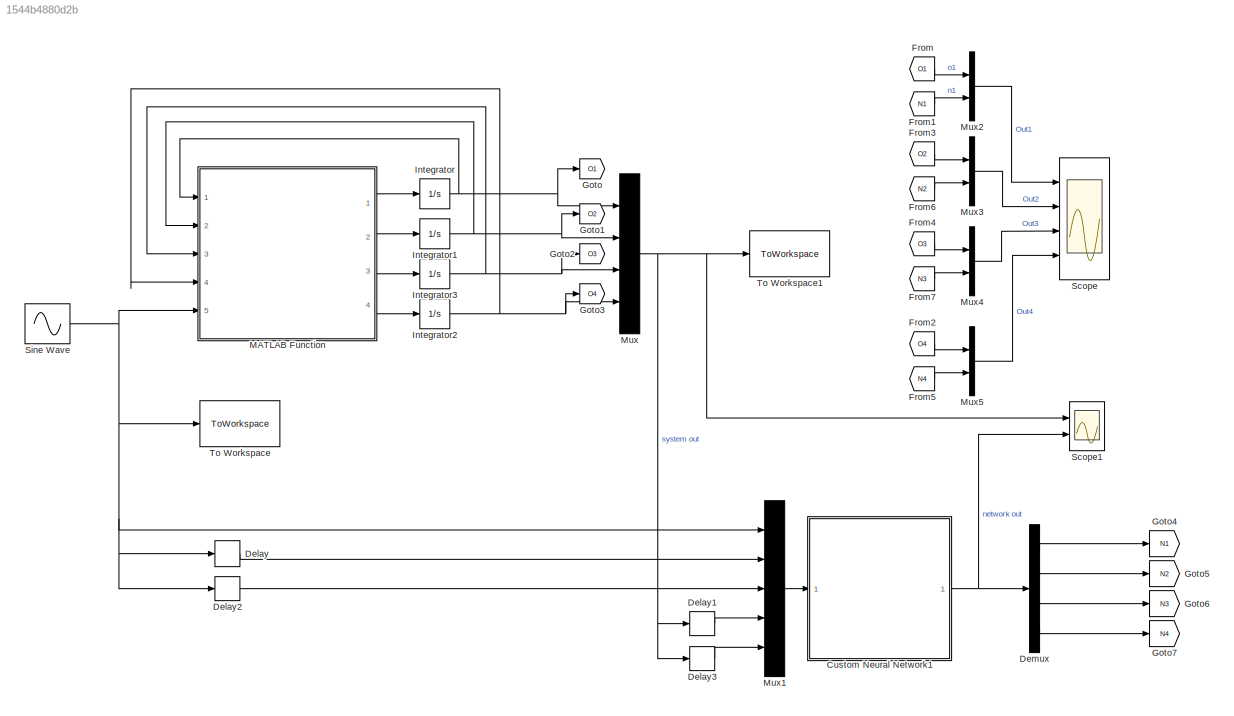
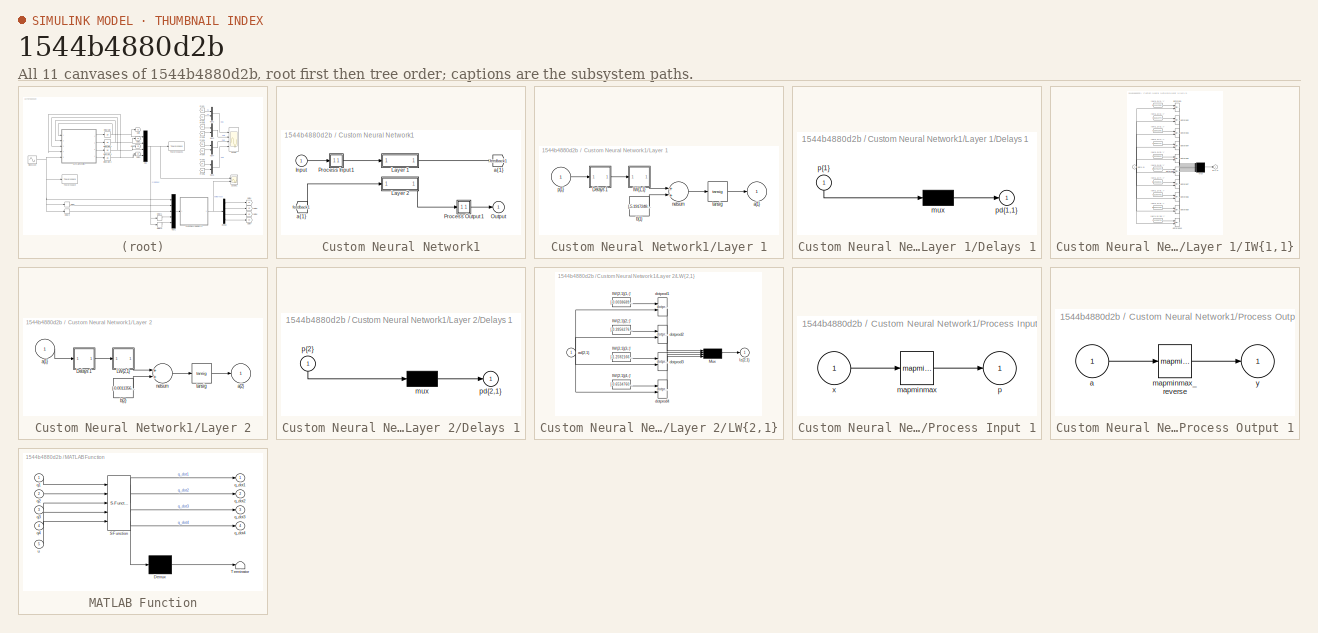
[diagram: thumbnail index - all 11 canvases of the model, root first then tree order]
MODEL slx_1544b4880d2b
KIND model
CONFIG AbsTol = auto
CONFIG EnableMultiTasking = off
CONFIG FixedStep = 0.1
CONFIG MaxStep = auto
CONFIG MinStep = auto
CONFIG RelTol = 1e-3
CONFIG SampleTimeConstraint = Unconstrained
CONFIG Solver = FixedStepAuto
CONFIG SolverName = FixedStepAuto
CONFIG StartTime = 0.0
CONFIG StopTime = 5.0
BLOCK [SubSystem] Custom Neural Network1
  Ports = [1, 1]
  RequestExecContextInheritance = off
BLOCK [From] Custom Neural Network1/ a{1} 
  GotoTag = feedback1
BLOCK [Inport] Custom Neural Network1/Input
  IconDisplay = Port number
  PortDimensions = 11
BLOCK [SubSystem] Custom Neural Network1/Layer 1
  Ports = [1, 1]
  RequestExecContextInheritance = off
BLOCK [SubSystem] Custom Neural Network1/Layer 1/Delays 1
  Ports = [1, 1]
  RequestExecContextInheritance = off
BLOCK [Mux] Custom Neural Network1/Layer 1/Delays 1/mux
  Inputs = 1
  Ports = [1, 1]
BLOCK [Outport] Custom Neural Network1/Layer 1/Delays 1/pd{1,1}
  IconDisplay = Port number
BLOCK [Inport] Custom Neural Network1/Layer 1/Delays 1/p{1}
  IconDisplay = Port number
  PortDimensions = 11
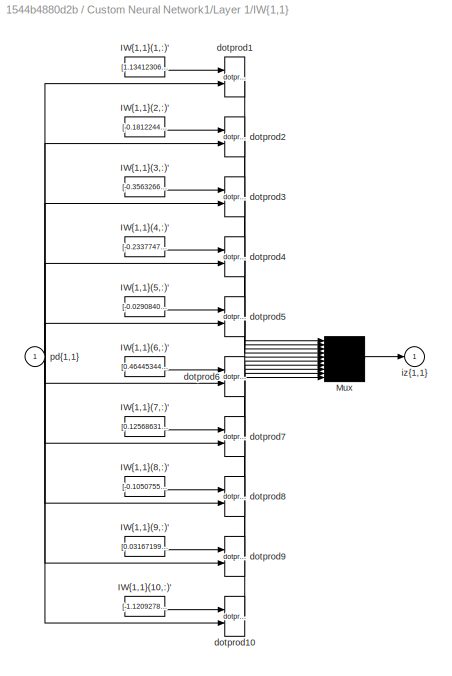
BLOCK [SubSystem] Custom Neural Network1/Layer 1/IW{1,1}
  Ports = [1, 1]
  RequestExecContextInheritance = off
BLOCK [Constant] Custom Neural Network1/Layer 1/IW{1,1}/IW{1,1}(1,:)'
  Value = [1.1341230663667916100934007772593759000301361083984375;-0.4636602460545178328032989156781695783138275146484375;0.87373120686943239743271760744391940534114837646484375;0.68277666131086489631485392237664200365543365478515625;0.019121015724631408583267244694070541299879550933837890625;-2.134972016034380803972680951119400560855865478515625;1.6521381207914858091356791192083619534969329833984375;1.1580...<+221ch>
BLOCK [Constant] Custom Neural Network1/Layer 1/IW{1,1}/IW{1,1}(10,:)'
  Value = [-1.1209278090473528965986815819633193314075469970703125;-0.477767900349778396051902973340475000441074371337890625;0.045308852915796497817790822182359988801181316375732421875;-2.65046604702121157970395870506763458251953125;1.25354209725742204994958228780888020992279052734375;0.4226437704529113492668557228171266615390777587890625;0.39415845993874765174069807471823878586292266845703125;-2.1010129913...<+209ch>
BLOCK [Constant] Custom Neural Network1/Layer 1/IW{1,1}/IW{1,1}(2,:)'
  Value = [-0.181224461545469173184841338297701440751552581787109375;0.23483273964877360295844255233532749116420745849609375;-0.2259573044765628424546122232641209848225116729736328125;0.411005989851798092526991013073711656033992767333984375;0.64953683949379559248171744911815039813518524169921875;0.26626314824245611578845682743121869862079620361328125;-1.661173341554654125928891517105512320995330810546875;0....<+212ch>
BLOCK [Constant] Custom Neural Network1/Layer 1/IW{1,1}/IW{1,1}(3,:)'
  Value = [-0.356326630044190795221226153444149531424045562744140625;0.388594131873345849381706784697598777711391448974609375;-0.36029377375213289536048932859557680785655975341796875;-0.0944981008612293116311064977708156220614910125732421875;0.2355398109038105147750030710085411556065082550048828125;4.93481372990318600812997829052619636058807373046875;0.503747267522813846341023236163891851902008056640625;0.8...<+221ch>
BLOCK [Constant] Custom Neural Network1/Layer 1/IW{1,1}/IW{1,1}(4,:)'
  Value = [-0.233774774969295606741326309929718263447284698486328125;0.262989794361324469296192773981601931154727935791015625;-0.2358727044319049725995540711664943955838680267333984375;-1.0327709250303842569707057919004000723361968994140625;0.07148809086886422081708047926440485753118991851806640625;1.1868209383537118295492973629734478890895843505859375;-0.6122683961945447617125637407298199832439422607421875...<+227ch>
BLOCK [Constant] Custom Neural Network1/Layer 1/IW{1,1}/IW{1,1}(5,:)'
  Value = [-0.0290840851750592301050435395382010028697550296783447265625;0.051373347296932582450867954548812122084200382232666015625;-0.05454552856771954782999500821460969746112823486328125;-0.68204049233297536769526914213201962411403656005859375;-0.93848381270338643300732428542687557637691497802734375;-0.83942686391769083531499973105383105576038360595703125;4.11263786029073941108435974456369876861572265625...<+219ch>
BLOCK [Constant] Custom Neural Network1/Layer 1/IW{1,1}/IW{1,1}(6,:)'
  Value = [0.464453448895205678326192355598323047161102294921875;-0.48482206332048460861727789961150847375392913818359375;0.45403053504024537545546991168521344661712646484375;1.044284480068653930828759257565252482891082763671875;0.02116520216901131290487825253876508213579654693603515625;1.2436729370503536440395464524044655263423919677734375;-1.5098194269585378801679098614840768277645111083984375;0.240500287...<+204ch>
BLOCK [Constant] Custom Neural Network1/Layer 1/IW{1,1}/IW{1,1}(7,:)'
  Value = [0.1256863140964872282978603834635578095912933349609375;-0.07537337781799025027140714882989414036273956298828125;0.1800603565846259079830105065411771647632122039794921875;1.3127750238628814738461869637831114232540130615234375;-0.068117454956574119417922474895021878182888031005859375;-0.6232028434455652021739524570875801146030426025390625;0.21942564782911866405612499875132925808429718017578125;0.31...<+213ch>
BLOCK [Constant] Custom Neural Network1/Layer 1/IW{1,1}/IW{1,1}(8,:)'
  Value = [-0.10507553528231076966914514514428447000682353973388671875;0.1128897236619923749589844419460860081017017364501953125;-0.1007338833525173449334744191219215281307697296142578125;-0.79522576537214095804273483736324124038219451904296875;-0.1466169343306387984338101659886888228356838226318359375;0.0252108052991420021615720514773784088902175426483154296875;-0.644226307120368102410168376081855967640876...<+234ch>
BLOCK [Constant] Custom Neural Network1/Layer 1/IW{1,1}/IW{1,1}(9,:)'
  Value = [0.031671994644033418797590684334863908588886260986328125;-0.034127901593477151520605872292435378767549991607666015625;0.0518896435243114406699049823146197013556957244873046875;0.8223512469958460524566135063651017844676971435546875;-0.1073579620228807540716076118769706226885318756103515625;0.10898136092458987622677568651852197945117950439453125;-4.15649576750388671797509232419542968273162841796875...<+217ch>
BLOCK [Mux] Custom Neural Network1/Layer 1/IW{1,1}/Mux
  Inputs = 10
  Ports = [10, 1]
BLOCK [Reference] Custom Neural Network1/Layer 1/IW{1,1}/dotprod1  REF=neural/Weight Functions/dotprod
  Ports = [2, 1]
  SourceBlock = neural/Weight Functions/dotprod
  SourceProductBaseCode = NN
  SourceProductName = Neural Network Toolbox
  SourceType = DOTPROD
BLOCK [Reference] Custom Neural Network1/Layer 1/IW{1,1}/dotprod10  REF=neural/Weight Functions/dotprod
  Ports = [2, 1]
  SourceBlock = neural/Weight Functions/dotprod
  SourceProductBaseCode = NN
  SourceProductName = Neural Network Toolbox
  SourceType = DOTPROD
BLOCK [Reference] Custom Neural Network1/Layer 1/IW{1,1}/dotprod2  REF=neural/Weight Functions/dotprod
  Ports = [2, 1]
  SourceBlock = neural/Weight Functions/dotprod
  SourceProductBaseCode = NN
  SourceProductName = Neural Network Toolbox
  SourceType = DOTPROD
BLOCK [Reference] Custom Neural Network1/Layer 1/IW{1,1}/dotprod3  REF=neural/Weight Functions/dotprod
  Ports = [2, 1]
  SourceBlock = neural/Weight Functions/dotprod
  SourceProductBaseCode = NN
  SourceProductName = Neural Network Toolbox
  SourceType = DOTPROD
BLOCK [Reference] Custom Neural Network1/Layer 1/IW{1,1}/dotprod4  REF=neural/Weight Functions/dotprod
  Ports = [2, 1]
  SourceBlock = neural/Weight Functions/dotprod
  SourceProductBaseCode = NN
  SourceProductName = Neural Network Toolbox
  SourceType = DOTPROD
BLOCK [Reference] Custom Neural Network1/Layer 1/IW{1,1}/dotprod5  REF=neural/Weight Functions/dotprod
  Ports = [2, 1]
  SourceBlock = neural/Weight Functions/dotprod
  SourceProductBaseCode = NN
  SourceProductName = Neural Network Toolbox
  SourceType = DOTPROD
BLOCK [Reference] Custom Neural Network1/Layer 1/IW{1,1}/dotprod6  REF=neural/Weight Functions/dotprod
  Ports = [2, 1]
  SourceBlock = neural/Weight Functions/dotprod
  SourceProductBaseCode = NN
  SourceProductName = Neural Network Toolbox
  SourceType = DOTPROD
BLOCK [Reference] Custom Neural Network1/Layer 1/IW{1,1}/dotprod7  REF=neural/Weight Functions/dotprod
  Ports = [2, 1]
  SourceBlock = neural/Weight Functions/dotprod
  SourceProductBaseCode = NN
  SourceProductName = Neural Network Toolbox
  SourceType = DOTPROD
BLOCK [Reference] Custom Neural Network1/Layer 1/IW{1,1}/dotprod8  REF=neural/Weight Functions/dotprod
  Ports = [2, 1]
  SourceBlock = neural/Weight Functions/dotprod
  SourceProductBaseCode = NN
  SourceProductName = Neural Network Toolbox
  SourceType = DOTPROD
BLOCK [Reference] Custom Neural Network1/Layer 1/IW{1,1}/dotprod9  REF=neural/Weight Functions/dotprod
  Ports = [2, 1]
  SourceBlock = neural/Weight Functions/dotprod
  SourceProductBaseCode = NN
  SourceProductName = Neural Network Toolbox
  SourceType = DOTPROD
BLOCK [Outport] Custom Neural Network1/Layer 1/IW{1,1}/iz{1,1}
  IconDisplay = Port number
BLOCK [Inport] Custom Neural Network1/Layer 1/IW{1,1}/pd{1,1}
  IconDisplay = Port number
  PortDimensions = 11
BLOCK [Outport] Custom Neural Network1/Layer 1/a{1}
  IconDisplay = Port number
  InitialOutput = [0;0;0;0;0;0;0;0;0;0]
BLOCK [Constant] Custom Neural Network1/Layer 1/b{1}
  Value = [-5.19172488336813575671158105251379311084747314453125;0.0639306799938050007714451794527121819555759429931640625;-0.0187617053274064561618761359795826137997210025787353515625;0.019740267384780400827803958918593707494437694549560546875;-0.06922950469684772956124874099259614013135433197021484375;0.039665370594634395684519034830373129807412624359130859375;-0.007827485535631848248550035407333780312910...<+198ch>
BLOCK [Sum] Custom Neural Network1/Layer 1/netsum
  Inputs = 2
  Ports = [2, 1]
BLOCK [Inport] Custom Neural Network1/Layer 1/p{1}
  IconDisplay = Port number
  PortDimensions = 11
BLOCK [Reference] Custom Neural Network1/Layer 1/tansig  REF=neural/Transfer Functions/tansig
  Ports = [1, 1]
  SourceBlock = neural/Transfer Functions/tansig
  SourceProductBaseCode = NN
  SourceProductName = Neural Network Toolbox
  SourceType = TANSIG
BLOCK [SubSystem] Custom Neural Network1/Layer 2
  Ports = [1, 1]
  RequestExecContextInheritance = off
BLOCK [SubSystem] Custom Neural Network1/Layer 2/Delays 1
  Ports = [1, 1]
  RequestExecContextInheritance = off
BLOCK [Mux] Custom Neural Network1/Layer 2/Delays 1/mux
  Inputs = 1
  Ports = [1, 1]
BLOCK [Outport] Custom Neural Network1/Layer 2/Delays 1/pd{2,1}
  IconDisplay = Port number
BLOCK [Inport] Custom Neural Network1/Layer 2/Delays 1/p{2}
  IconDisplay = Port number
  PortDimensions = 10
BLOCK [SubSystem] Custom Neural Network1/Layer 2/LW{2,1}
  Ports = [1, 1]
  RequestExecContextInheritance = off
BLOCK [Constant] Custom Neural Network1/Layer 2/LW{2,1}/IW{2,1}(1,:)'
  Value = [-0.003868954975504618025439196316028755973093211650848388671875;-0.02351996056367290643951406536871218122541904449462890625;1.48159387478872961452225354150868952274322509765625;-0.2037493861985155974014816138151218183338642120361328125;0.000215095017814275119884259712677021525450982153415679931640625;1.5498394934563257674398073504562489688396453857421875;0.0208713846672534848736280110870211501605...<+187ch>
BLOCK [Constant] Custom Neural Network1/Layer 2/LW{2,1}/IW{2,1}(2,:)'
  Value = [-0.395627604281082512205358625578810460865497589111328125;0.292423230894027719184435909482999704778194427490234375;0.08530991878733114319732777630633790977299213409423828125;-1.21190417332339261946572150918655097484588623046875;-0.793855829217624542337716775364242494106292724609375;0.163313163805293093400194948117132298648357391357421875;0.265242753798578811963437829035683535039424896240234375;0....<+167ch>
BLOCK [Constant] Custom Neural Network1/Layer 2/LW{2,1}/IW{2,1}(3,:)'
  Value = [-1.2592166693703372715162913664244115352630615234375;-0.04235834158539476812510571335224085487425327301025390625;0.4196878949637874445244278831523843109607696533203125;1.8726354953729804631024080663337372243404388427734375;-0.003395011736360176689275558459257808863185346126556396484375;-0.309598352862655412653936082278960384428501129150390625;0.0306972296074646232300064951914464472793042659759521...<+185ch>
BLOCK [Constant] Custom Neural Network1/Layer 2/LW{2,1}/IW{2,1}(4,:)'
  Value = [-0.65347600146053907987919728839187882840633392333984375;0.7110438638585134807357235331437550485134124755859375;-0.12306017303418097241785034157146583311259746551513671875;-0.50674022419993303145702157053165137767791748046875;1.8604916923243164372792080030194483697414398193359375;-0.1486497020107452604609221680220798589289188385009765625;1.134985517700155543963091986370272934436798095703125;0.689...<+166ch>
BLOCK [Mux] Custom Neural Network1/Layer 2/LW{2,1}/Mux
  Ports = [4, 1]
BLOCK [Inport] Custom Neural Network1/Layer 2/LW{2,1}/ad{2,1}
  IconDisplay = Port number
  PortDimensions = 10
BLOCK [Reference] Custom Neural Network1/Layer 2/LW{2,1}/dotprod1  REF=neural/Weight Functions/dotprod
  Ports = [2, 1]
  SourceBlock = neural/Weight Functions/dotprod
  SourceProductBaseCode = NN
  SourceProductName = Neural Network Toolbox
  SourceType = DOTPROD
BLOCK [Reference] Custom Neural Network1/Layer 2/LW{2,1}/dotprod2  REF=neural/Weight Functions/dotprod
  Ports = [2, 1]
  SourceBlock = neural/Weight Functions/dotprod
  SourceProductBaseCode = NN
  SourceProductName = Neural Network Toolbox
  SourceType = DOTPROD
BLOCK [Reference] Custom Neural Network1/Layer 2/LW{2,1}/dotprod3  REF=neural/Weight Functions/dotprod
  Ports = [2, 1]
  SourceBlock = neural/Weight Functions/dotprod
  SourceProductBaseCode = NN
  SourceProductName = Neural Network Toolbox
  SourceType = DOTPROD
BLOCK [Reference] Custom Neural Network1/Layer 2/LW{2,1}/dotprod4  REF=neural/Weight Functions/dotprod
  Ports = [2, 1]
  SourceBlock = neural/Weight Functions/dotprod
  SourceProductBaseCode = NN
  SourceProductName = Neural Network Toolbox
  SourceType = DOTPROD
BLOCK [Outport] Custom Neural Network1/Layer 2/LW{2,1}/lz{2,1}
  IconDisplay = Port number
BLOCK [Inport] Custom Neural Network1/Layer 2/a{1} 
  IconDisplay = Port number
  PortDimensions = 10
BLOCK [Outport] Custom Neural Network1/Layer 2/a{2}
  IconDisplay = Port number
  InitialOutput = [0;0;0;0]
BLOCK [Constant] Custom Neural Network1/Layer 2/b{2}
  Value = [-0.00113562566813537224770513933691518104751594364643096923828125;-0.442085319722853142820895300246775150299072265625;-1.2478831491509030371389599167741835117340087890625;-0.6058102724396186022914889690582640469074249267578125]
BLOCK [Sum] Custom Neural Network1/Layer 2/netsum
  Inputs = 2
  Ports = [2, 1]
BLOCK [Reference] Custom Neural Network1/Layer 2/tansig  REF=neural/Transfer Functions/tansig
  Ports = [1, 1]
  SourceBlock = neural/Transfer Functions/tansig
  SourceProductBaseCode = NN
  SourceProductName = Neural Network Toolbox
  SourceType = TANSIG
BLOCK [Outport] Custom Neural Network1/Output
  IconDisplay = Port number
  InitialOutput = [0;0;0;0]
BLOCK [SubSystem] Custom Neural Network1/Process Input 1
  Ports = [1, 1]
  RequestExecContextInheritance = off
BLOCK [Reference] Custom Neural Network1/Process Input 1/mapminmax  REF=neural/Processing Functions/mapminmax
  Ports = [1, 1]
  SourceBlock = neural/Processing Functions/mapminmax
  SourceProductBaseCode = NN
  SourceProductName = Neural Network Toolbox
  SourceType = MAPMINMAX Preprocess
BLOCK [Outport] Custom Neural Network1/Process Input 1/p
  IconDisplay = Port number
  PortDimensions = 11
BLOCK [Inport] Custom Neural Network1/Process Input 1/x
  IconDisplay = Port number
  PortDimensions = 11
BLOCK [SubSystem] Custom Neural Network1/Process Output 1
  Ports = [1, 1]
  RequestExecContextInheritance = off
BLOCK [Inport] Custom Neural Network1/Process Output 1/a
  IconDisplay = Port number
  PortDimensions = 4
BLOCK [Reference] Custom Neural Network1/Process Output 1/mapminmax_reverse  REF=neural/Processing Functions/mapminmax_reverse
  Ports = [1, 1]
  SourceBlock = neural/Processing Functions/mapminmax_reverse
  SourceProductBaseCode = NN
  SourceProductName = Neural Network Toolbox
  SourceType = MAPMINMAX Reverse Process
BLOCK [Outport] Custom Neural Network1/Process Output 1/y
  IconDisplay = Port number
  PortDimensions = 4
BLOCK [Goto] Custom Neural Network1/a{1}
  GotoTag = feedback1
BLOCK [Delay] Delay
  DelayLength = 1
  InputPortMap = u0
  Ports = [1, 1]
BLOCK [Delay] Delay1
  DelayLength = 1
  InputPortMap = u0
  Ports = [1, 1]
BLOCK [Delay] Delay2
  InputPortMap = u0
  Ports = [1, 1]
BLOCK [Delay] Delay3
  InputPortMap = u0
  Ports = [1, 1]
BLOCK [Demux] Demux
  DisplayOption = bar
  Ports = [1, 4]
BLOCK [From] From
  GotoTag = O1
BLOCK [From] From1
  GotoTag = N1
BLOCK [From] From2
  GotoTag = O4
BLOCK [From] From3
  GotoTag = O2
BLOCK [From] From4
  GotoTag = O3
BLOCK [From] From5
  GotoTag = N4
BLOCK [From] From6
  GotoTag = N2
BLOCK [From] From7
  GotoTag = N3
BLOCK [Goto] Goto
  GotoTag = O1
BLOCK [Goto] Goto1
  GotoTag = O2
BLOCK [Goto] Goto2
  GotoTag = O3
BLOCK [Goto] Goto3
  GotoTag = O4
BLOCK [Goto] Goto4
  GotoTag = N1
BLOCK [Goto] Goto5
  GotoTag = N2
BLOCK [Goto] Goto6
  GotoTag = N3
BLOCK [Goto] Goto7
  GotoTag = N4
BLOCK [Integrator] Integrator
  Ports = [1, 1]
BLOCK [Integrator] Integrator1
  Ports = [1, 1]
BLOCK [Integrator] Integrator2
  Ports = [1, 1]
BLOCK [Integrator] Integrator3
  Ports = [1, 1]
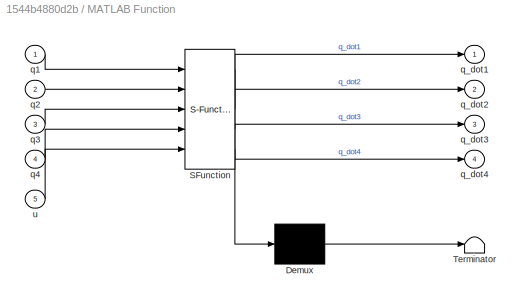
BLOCK [SubSystem] MATLAB Function
  ErrorFcn = Stateflow.Translate.translate
  PermitHierarchicalResolution = ExplicitOnly
  Ports = [5, 4]
  RequestExecContextInheritance = off
  SFBlockType = MATLAB Function
  TreatAsAtomicUnit = on
BLOCK [Demux] MATLAB Function/ Demux 
  Outputs = 1
  Ports = [1, 1]
BLOCK [S-Function] MATLAB Function/ SFunction 
  EnableBusSupport = on
  FunctionName = sf_sfun
  PortCounts = [5 5]
  Ports = [5, 5]
  SFcnIsStateOwnerBlock = off
  SFunctionDeploymentMode = off
  Tag = Stateflow S-Function Exp7_Q1 2
BLOCK [Terminator] MATLAB Function/ Terminator 
BLOCK [Inport] MATLAB Function/q1
  IconDisplay = Port number
BLOCK [Inport] MATLAB Function/q2
  IconDisplay = Port number
  Port = 2
BLOCK [Inport] MATLAB Function/q3
  IconDisplay = Port number
  Port = 3
BLOCK [Inport] MATLAB Function/q4
  IconDisplay = Port number
  Port = 4
BLOCK [Outport] MATLAB Function/q_dot1
  IconDisplay = Port number
BLOCK [Outport] MATLAB Function/q_dot2
  IconDisplay = Port number
  Port = 2
BLOCK [Outport] MATLAB Function/q_dot3
  IconDisplay = Port number
  Port = 3
BLOCK [Outport] MATLAB Function/q_dot4
  IconDisplay = Port number
  Port = 4
BLOCK [Inport] MATLAB Function/u
  IconDisplay = Port number
  Port = 5
BLOCK [Mux] Mux
  DisplayOption = bar
  Ports = [4, 1]
BLOCK [Mux] Mux1
  DisplayOption = bar
  Inputs = 5
  Ports = [5, 1]
BLOCK [Mux] Mux2
  DisplayOption = bar
  Inputs = 2
  Ports = [2, 1]
BLOCK [Mux] Mux3
  DisplayOption = bar
  Inputs = 2
  Ports = [2, 1]
BLOCK [Mux] Mux4
  DisplayOption = bar
  Inputs = 2
  Ports = [2, 1]
BLOCK [Mux] Mux5
  DisplayOption = bar
  Inputs = 2
  Ports = [2, 1]
BLOCK [Scope] Scope
  Floating = off
  NumInputPorts = 4
  Ports = [4]
  ScopeSpecificationString = Simulink.scopes.TimeScopeBlockCfg('CurrentConfiguration', extmgr.ConfigurationSet(extmgr.Configuration('Core','General UI',true,'FigureColor',[1 1 1]),extmgr.Configuration('Core','Source UI',true),extmgr.Configuration('Sources','WiredSimulink',true),extmgr.Configuration('Visuals','Time Domain',true,'SerializedDisplays',{struct('MinYLimReal','-3.51335','MaxYLimReal','0.39037','YLabelReal','','MinYL...<+4239ch>
BLOCK [Scope] Scope1
  Floating = off
  NumInputPorts = 2
  Ports = [2]
  ScopeSpecificationString = Simulink.scopes.TimeScopeBlockCfg('CurrentConfiguration', extmgr.ConfigurationSet(extmgr.Configuration('Core','General UI',true,'FigureColor',[1 1 1]),extmgr.Configuration('Core','Source UI',true),extmgr.Configuration('Sources','WiredSimulink',true,'DataLoggingVariableName','ScopeData1'),extmgr.Configuration('Visuals','Time Domain',true,'SerializedDisplays',{struct('MinYLimReal','-3.864','MaxYLimR...<+3253ch>
BLOCK [Sin] Sine Wave
  Frequency = 10
  Ports = [0, 1]
  SampleTime = 0
BLOCK [ToWorkspace] To Workspace
  FixptAsFi = on
  MaxDataPoints = inf
  Ports = [1]
  SampleTime = -1
  Save2DSignal = 3-D array (concatenate along third dimension)
  SaveFormat = Timeseries
  VariableName = input
BLOCK [ToWorkspace] To Workspace1
  FixptAsFi = on
  MaxDataPoints = inf
  Ports = [1]
  SampleTime = -1
  Save2DSignal = 3-D array (concatenate along third dimension)
  SaveFormat = Timeseries
  VariableName = output
LINE Custom Neural Network1/ a{1} :1 -> Custom Neural Network1/Layer 2:1
LINE Custom Neural Network1/Input:1 -> Custom Neural Network1/Process Input 1:1
LINE Custom Neural Network1/Layer 1/Delays 1/mux:1 -> Custom Neural Network1/Layer 1/Delays 1/pd{1,1}:1
LINE Custom Neural Network1/Layer 1/Delays 1/p{1}:1 -> Custom Neural Network1/Layer 1/Delays 1/mux:1
LINE Custom Neural Network1/Layer 1/Delays 1:1 -> Custom Neural Network1/Layer 1/IW{1,1}:1
LINE Custom Neural Network1/Layer 1/IW{1,1}/IW{1,1}(1,:)':1 -> Custom Neural Network1/Layer 1/IW{1,1}/dotprod1:1
LINE Custom Neural Network1/Layer 1/IW{1,1}/IW{1,1}(10,:)':1 -> Custom Neural Network1/Layer 1/IW{1,1}/dotprod10:1
LINE Custom Neural Network1/Layer 1/IW{1,1}/IW{1,1}(2,:)':1 -> Custom Neural Network1/Layer 1/IW{1,1}/dotprod2:1
LINE Custom Neural Network1/Layer 1/IW{1,1}/IW{1,1}(3,:)':1 -> Custom Neural Network1/Layer 1/IW{1,1}/dotprod3:1
LINE Custom Neural Network1/Layer 1/IW{1,1}/IW{1,1}(4,:)':1 -> Custom Neural Network1/Layer 1/IW{1,1}/dotprod4:1
LINE Custom Neural Network1/Layer 1/IW{1,1}/IW{1,1}(5,:)':1 -> Custom Neural Network1/Layer 1/IW{1,1}/dotprod5:1
LINE Custom Neural Network1/Layer 1/IW{1,1}/IW{1,1}(6,:)':1 -> Custom Neural Network1/Layer 1/IW{1,1}/dotprod6:1
LINE Custom Neural Network1/Layer 1/IW{1,1}/IW{1,1}(7,:)':1 -> Custom Neural Network1/Layer 1/IW{1,1}/dotprod7:1
LINE Custom Neural Network1/Layer 1/IW{1,1}/IW{1,1}(8,:)':1 -> Custom Neural Network1/Layer 1/IW{1,1}/dotprod8:1
LINE Custom Neural Network1/Layer 1/IW{1,1}/IW{1,1}(9,:)':1 -> Custom Neural Network1/Layer 1/IW{1,1}/dotprod9:1
LINE Custom Neural Network1/Layer 1/IW{1,1}/Mux:1 -> Custom Neural Network1/Layer 1/IW{1,1}/iz{1,1}:1
LINE Custom Neural Network1/Layer 1/IW{1,1}/dotprod10:1 -> Custom Neural Network1/Layer 1/IW{1,1}/Mux:10
LINE Custom Neural Network1/Layer 1/IW{1,1}/dotprod1:1 -> Custom Neural Network1/Layer 1/IW{1,1}/Mux:1
LINE Custom Neural Network1/Layer 1/IW{1,1}/dotprod2:1 -> Custom Neural Network1/Layer 1/IW{1,1}/Mux:2
LINE Custom Neural Network1/Layer 1/IW{1,1}/dotprod3:1 -> Custom Neural Network1/Layer 1/IW{1,1}/Mux:3
LINE Custom Neural Network1/Layer 1/IW{1,1}/dotprod4:1 -> Custom Neural Network1/Layer 1/IW{1,1}/Mux:4
LINE Custom Neural Network1/Layer 1/IW{1,1}/dotprod5:1 -> Custom Neural Network1/Layer 1/IW{1,1}/Mux:5
LINE Custom Neural Network1/Layer 1/IW{1,1}/dotprod6:1 -> Custom Neural Network1/Layer 1/IW{1,1}/Mux:6
LINE Custom Neural Network1/Layer 1/IW{1,1}/dotprod7:1 -> Custom Neural Network1/Layer 1/IW{1,1}/Mux:7
LINE Custom Neural Network1/Layer 1/IW{1,1}/dotprod8:1 -> Custom Neural Network1/Layer 1/IW{1,1}/Mux:8
LINE Custom Neural Network1/Layer 1/IW{1,1}/dotprod9:1 -> Custom Neural Network1/Layer 1/IW{1,1}/Mux:9
NET Custom Neural Network1/Layer 1/IW{1,1}/pd{1,1}:1 -> Custom Neural Network1/Layer 1/IW{1,1}/dotprod10:2, Custom Neural Network1/Layer 1/IW{1,1}/dotprod1:2, Custom Neural Network1/Layer 1/IW{1,1}/dotprod2:2, Custom Neural Network1/Layer 1/IW{1,1}/dotprod3:2, Custom Neural Network1/Layer 1/IW{1,1}/dotprod4:2, Custom Neural Network1/Layer 1/IW{1,1}/dotprod5:2, Custom Neural Network1/Layer 1/IW{1,1}/dotprod6:2, Custom Neural Network1/Layer 1/IW{1,1}/dotprod7:2, Custom Neural Network1/Layer 1/IW{1,1}/dotprod8:2, Custom Neural Network1/Layer 1/IW{1,1}/dotprod9:2
LINE Custom Neural Network1/Layer 1/IW{1,1}:1 -> Custom Neural Network1/Layer 1/netsum:1
LINE Custom Neural Network1/Layer 1/b{1}:1 -> Custom Neural Network1/Layer 1/netsum:2
LINE Custom Neural Network1/Layer 1/netsum:1 -> Custom Neural Network1/Layer 1/tansig:1
LINE Custom Neural Network1/Layer 1/p{1}:1 -> Custom Neural Network1/Layer 1/Delays 1:1
LINE Custom Neural Network1/Layer 1/tansig:1 -> Custom Neural Network1/Layer 1/a{1}:1
LINE Custom Neural Network1/Layer 1:1 -> Custom Neural Network1/a{1}:1
LINE Custom Neural Network1/Layer 2/Delays 1/mux:1 -> Custom Neural Network1/Layer 2/Delays 1/pd{2,1}:1
LINE Custom Neural Network1/Layer 2/Delays 1/p{2}:1 -> Custom Neural Network1/Layer 2/Delays 1/mux:1
LINE Custom Neural Network1/Layer 2/Delays 1:1 -> Custom Neural Network1/Layer 2/LW{2,1}:1
LINE Custom Neural Network1/Layer 2/LW{2,1}/IW{2,1}(1,:)':1 -> Custom Neural Network1/Layer 2/LW{2,1}/dotprod1:1
LINE Custom Neural Network1/Layer 2/LW{2,1}/IW{2,1}(2,:)':1 -> Custom Neural Network1/Layer 2/LW{2,1}/dotprod2:1
LINE Custom Neural Network1/Layer 2/LW{2,1}/IW{2,1}(3,:)':1 -> Custom Neural Network1/Layer 2/LW{2,1}/dotprod3:1
LINE Custom Neural Network1/Layer 2/LW{2,1}/IW{2,1}(4,:)':1 -> Custom Neural Network1/Layer 2/LW{2,1}/dotprod4:1
LINE Custom Neural Network1/Layer 2/LW{2,1}/Mux:1 -> Custom Neural Network1/Layer 2/LW{2,1}/lz{2,1}:1
NET Custom Neural Network1/Layer 2/LW{2,1}/ad{2,1}:1 -> Custom Neural Network1/Layer 2/LW{2,1}/dotprod1:2, Custom Neural Network1/Layer 2/LW{2,1}/dotprod2:2, Custom Neural Network1/Layer 2/LW{2,1}/dotprod3:2, Custom Neural Network1/Layer 2/LW{2,1}/dotprod4:2
LINE Custom Neural Network1/Layer 2/LW{2,1}/dotprod1:1 -> Custom Neural Network1/Layer 2/LW{2,1}/Mux:1
LINE Custom Neural Network1/Layer 2/LW{2,1}/dotprod2:1 -> Custom Neural Network1/Layer 2/LW{2,1}/Mux:2
LINE Custom Neural Network1/Layer 2/LW{2,1}/dotprod3:1 -> Custom Neural Network1/Layer 2/LW{2,1}/Mux:3
LINE Custom Neural Network1/Layer 2/LW{2,1}/dotprod4:1 -> Custom Neural Network1/Layer 2/LW{2,1}/Mux:4
LINE Custom Neural Network1/Layer 2/LW{2,1}:1 -> Custom Neural Network1/Layer 2/netsum:1
LINE Custom Neural Network1/Layer 2/a{1} :1 -> Custom Neural Network1/Layer 2/Delays 1:1
LINE Custom Neural Network1/Layer 2/b{2}:1 -> Custom Neural Network1/Layer 2/netsum:2
LINE Custom Neural Network1/Layer 2/netsum:1 -> Custom Neural Network1/Layer 2/tansig:1
LINE Custom Neural Network1/Layer 2/tansig:1 -> Custom Neural Network1/Layer 2/a{2}:1
LINE Custom Neural Network1/Layer 2:1 -> Custom Neural Network1/Process Output 1:1
LINE Custom Neural Network1/Process Input 1/mapminmax:1 -> Custom Neural Network1/Process Input 1/p:1
LINE Custom Neural Network1/Process Input 1/x:1 -> Custom Neural Network1/Process Input 1/mapminmax:1
LINE Custom Neural Network1/Process Input 1:1 -> Custom Neural Network1/Layer 1:1
LINE Custom Neural Network1/Process Output 1/a:1 -> Custom Neural Network1/Process Output 1/mapminmax_reverse:1
LINE Custom Neural Network1/Process Output 1/mapminmax_reverse:1 -> Custom Neural Network1/Process Output 1/y:1
LINE Custom Neural Network1/Process Output 1:1 -> Custom Neural Network1/Output:1
NET Custom Neural Network1:1 -> Demux:1, Scope1:2
LINE Delay1:1 -> Mux1:4
LINE Delay2:1 -> Mux1:3
LINE Delay3:1 -> Mux1:5
LINE Delay:1 -> Mux1:2
LINE Demux:1 -> Goto4:1
LINE Demux:2 -> Goto5:1
LINE Demux:3 -> Goto6:1
LINE Demux:4 -> Goto7:1
LINE From1:1 -> Mux2:2
LINE From2:1 -> Mux5:1
LINE From3:1 -> Mux3:1
LINE From4:1 -> Mux4:1
LINE From5:1 -> Mux5:2
LINE From6:1 -> Mux3:2
LINE From7:1 -> Mux4:2
LINE From:1 -> Mux2:1
NET Integrator1:1 -> Goto1:1, MATLAB Function:2, Mux:2
NET Integrator2:1 -> Goto3:1, MATLAB Function:4, Mux:4
NET Integrator3:1 -> Goto2:1, MATLAB Function:3, Mux:3
NET Integrator:1 -> Goto:1, MATLAB Function:1, Mux:1
LINE MATLAB Function:1 -> Integrator:1
LINE MATLAB Function:2 -> Integrator1:1
LINE MATLAB Function:3 -> Integrator3:1
LINE MATLAB Function:4 -> Integrator2:1
LINE Mux1:1 -> Custom Neural Network1:1
LINE Mux2:1 -> Scope:1
LINE Mux3:1 -> Scope:2
LINE Mux4:1 -> Scope:3
LINE Mux5:1 -> Scope:4
NET Mux:1 -> Delay1:1, Delay3:1, Scope1:1, To Workspace1:1
NET Sine Wave:1 -> Delay2:1, Delay:1, MATLAB Function:5, Mux1:1, To Workspace:1
note: NET lines group one-source signal fan-out (src -> all destinations, sorted); 1:1 wires keep LINE
CHART MATLAB Function states=1 transitions=1
  STATE_LABEL 'eML_blk_kernel()'
  STATE_LABEL 'SCRIPT:\nfunction [q_dot1,q_dot2,q_dot3,q_dot4] = fcn(q1,q2,q3,q4,u)\na1 = 200.01;\na2 = 23.5;\na3 = 122.5;\na4 = 25;\nb1 = 784.8;\nb2 = 245.25;\nM = [a1 + 2*a4*cos(q2) a2 + a4*cos(q2);a2 + a4*cos(q2) a3];\nD = 0;\nC = a4*sin(q2)*[-q4 -(q3+q4);q3 0];\ng = [b1*cos(q1) + b2*cos(q1+q2);b2*cos(q1+q2)]\nx2 = [q3;q4]\nx_dot2 = inv(M)*(u-C*x2-D*2-g);\nq_dot1 = q3;\nq_dot2 = q4;\nq_dot3 = x_dot2(1);\nq_dot4 = x_dot2(2);\n\n'
